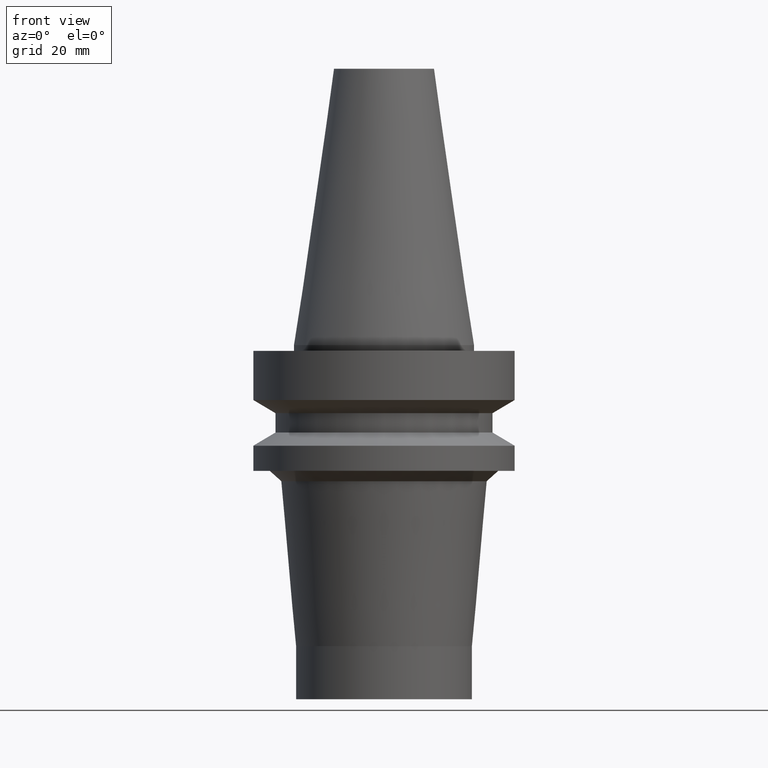
[diagram: clean part render]
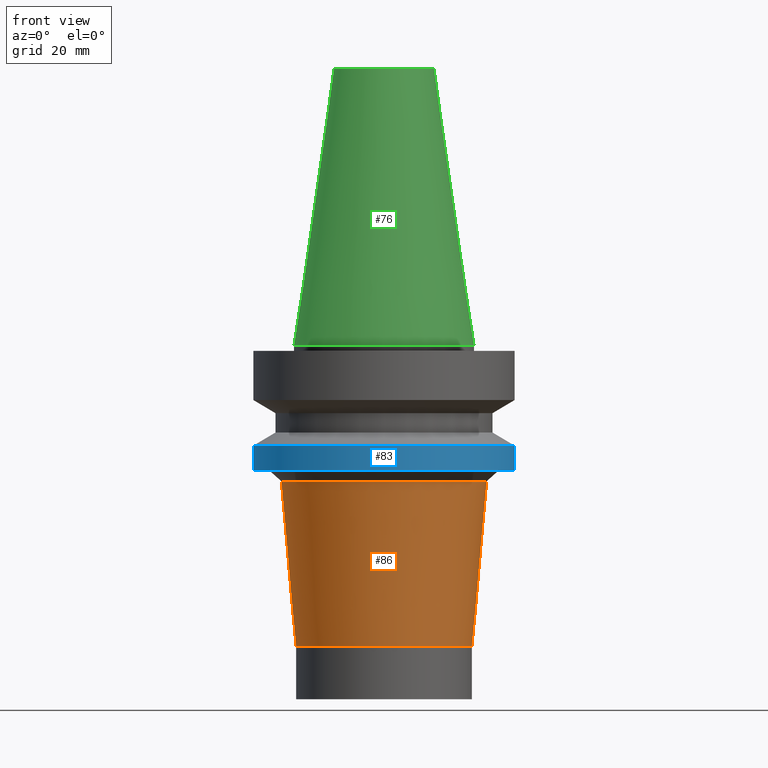
[diagram: same view with three faces highlighted in distinct colors, each labeled with its STEP entity id]
A machine part, front view with three faces highlighted in distinct colors.
Their STEP definitions:

[orange] entity #86 — the highlighted conical surface has half-angle 4.963 deg.
#86=ADVANCED_FACE('',(#122,#123),#124,.T.);
#122=FACE_BOUND('',#162,.T.);
#123=FACE_BOUND('',#163,.T.);
#124=CONICAL_SURFACE('',#164,16.7542089552907,0.0866292774079694);
#162=EDGE_LOOP('',(#224));
#163=EDGE_LOOP('',(#225));
#164=AXIS2_PLACEMENT_3D('',#226,#227,#228);
#224=ORIENTED_EDGE('',*,*,#249,.F.);
#225=ORIENTED_EDGE('',*,*,#248,.T.);
#226=CARTESIAN_POINT('',(2.34264813675437E-015,4.68529627350875E-015,-38.2583474416528));
#227=DIRECTION('',(-6.12323399573676E-017,-1.2246467991473E-016,1.0));
#228=DIRECTION('',(-1.2325951644079E-032,1.0,1.2246467991473E-016));
#248=EDGE_CURVE('',#271,#271,#272,.T.);
#249=EDGE_CURVE('',#273,#273,#274,.T.);
#271=VERTEX_POINT('',#297);
#272=CIRCLE('',#298,18.0084179105814);
#273=VERTEX_POINT('',#299);
#274=CIRCLE('',#300,15.5);
#297=CARTESIAN_POINT('',(1.45835195775547E-015,18.0084179105814,-23.8166948833057));
#298=AXIS2_PLACEMENT_3D('',#333,#334,#335);
#299=CARTESIAN_POINT('',(3.22694431575328E-015,15.5,-52.7));
#300=AXIS2_PLACEMENT_3D('',#336,#337,#338);
#333=CARTESIAN_POINT('',(1.45835195775547E-015,2.91670391551094E-015,-23.8166948833057));
#334=DIRECTION('',(6.12323399573677E-017,1.22464679914733E-016,-1.0));
#335=DIRECTION('',(-1.23259516440797E-032,1.0,1.22464679914733E-016));
#336=CARTESIAN_POINT('',(3.22694431575328E-015,6.45388863150655E-015,-52.7));
#337=DIRECTION('',(6.12323399573677E-017,1.22464679914728E-016,-1.0));
#338=DIRECTION('',(-1.23259516440783E-032,1.0,1.22464679914728E-016));

[blue] entity #83 — the highlighted cylindrical surface (bore or boss wall) has radius 23 mm, axis along (-0, -0, 1).
#83=ADVANCED_FACE('',(#113,#114),#115,.T.);
#113=FACE_BOUND('',#153,.T.);
#114=FACE_BOUND('',#154,.T.);
#115=CYLINDRICAL_SURFACE('',#155,23.0);
#153=EDGE_LOOP('',(#209));
#154=EDGE_LOOP('',(#210));
#155=AXIS2_PLACEMENT_3D('',#211,#212,#213);
#209=ORIENTED_EDGE('',*,*,#246,.F.);
#210=ORIENTED_EDGE('',*,*,#245,.T.);
#211=CARTESIAN_POINT('',(1.21240033115588E-015,2.42480066231176E-015,-19.8));
#212=DIRECTION('',(-6.12323399573677E-017,-1.22464679914716E-016,1.0));
#213=DIRECTION('',(-1.23259516440783E-032,1.0,1.22464679914716E-016));
#245=EDGE_CURVE('',#265,#265,#266,.T.);
#246=EDGE_CURVE('',#267,#267,#268,.T.);
#265=VERTEX_POINT('',#291);
#266=CIRCLE('',#292,23.0);
#267=VERTEX_POINT('',#293);
#268=CIRCLE('',#294,23.0);
#291=CARTESIAN_POINT('',(1.07768918324967E-015,23.0,-17.6));
#292=AXIS2_PLACEMENT_3D('',#324,#325,#326);
#293=CARTESIAN_POINT('',(1.34711147906209E-015,23.0,-22.0));
#294=AXIS2_PLACEMENT_3D('',#327,#328,#329);
#324=CARTESIAN_POINT('',(1.07768918324967E-015,2.15537836649934E-015,-17.6));
#325=DIRECTION('',(6.12323399573677E-017,1.22464679914716E-016,-1.0));
#326=DIRECTION('',(-1.23259516440783E-032,1.0,1.22464679914716E-016));
#327=CARTESIAN_POINT('',(1.34711147906209E-015,2.69422295812418E-015,-22.0));
#328=DIRECTION('',(6.12323399573677E-017,1.22464679914716E-016,-1.0));
#329=DIRECTION('',(-1.23259516440783E-032,1.0,1.22464679914716E-016));

[green] entity #76 — the highlighted conical surface has half-angle 8.297 deg.
#76=ADVANCED_FACE('',(#92,#93),#94,.T.);
#92=FACE_BOUND('',#132,.T.);
#93=FACE_BOUND('',#133,.T.);
#94=CONICAL_SURFACE('',#134,12.3457500009933,0.14481587001362);
#132=EDGE_LOOP('',(#174));
#133=EDGE_LOOP('',(#175));
#134=AXIS2_PLACEMENT_3D('',#176,#177,#178);
#174=ORIENTED_EDGE('',*,*,#239,.F.);
#175=ORIENTED_EDGE('',*,*,#238,.T.);
#176=CARTESIAN_POINT('',(-1.4818226269683E-015,-2.96364525393659E-015,24.2));
#177=DIRECTION('',(6.12323399573677E-017,1.22464679914765E-016,-1.0));
#178=DIRECTION('',(-1.23259516440785E-032,1.0,1.22464679914765E-016));
#238=EDGE_CURVE('',#251,#251,#252,.T.);
#239=EDGE_CURVE('',#253,#253,#254,.T.);
#251=VERTEX_POINT('',#277);
#252=CIRCLE('',#278,8.81650000198667);
#253=VERTEX_POINT('',#279);
#254=CIRCLE('',#280,15.875);
#277=CARTESIAN_POINT('',(-2.96364525393659E-015,8.81650000198667,48.4));
#278=AXIS2_PLACEMENT_3D('',#303,#304,#305);
#279=CARTESIAN_POINT('',(-1.95674482349743E-031,15.875,1.94412679364642E-015));
#280=AXIS2_PLACEMENT_3D('',#306,#307,#308);
#303=CARTESIAN_POINT('',(-2.96364525393659E-015,-5.92729050787319E-015,48.4));
#304=DIRECTION('',(6.12323399573677E-017,1.22464679914719E-016,-1.0));
#305=DIRECTION('',(-1.2325951644079E-032,1.0,1.22464679914719E-016));
#306=CARTESIAN_POINT('',(0.0,0.0,0.0));
#307=DIRECTION('',(6.12323399573677E-017,1.22464679914714E-016,-1.0));
#308=DIRECTION('',(-1.23259516440783E-032,1.0,1.22464679914714E-016));